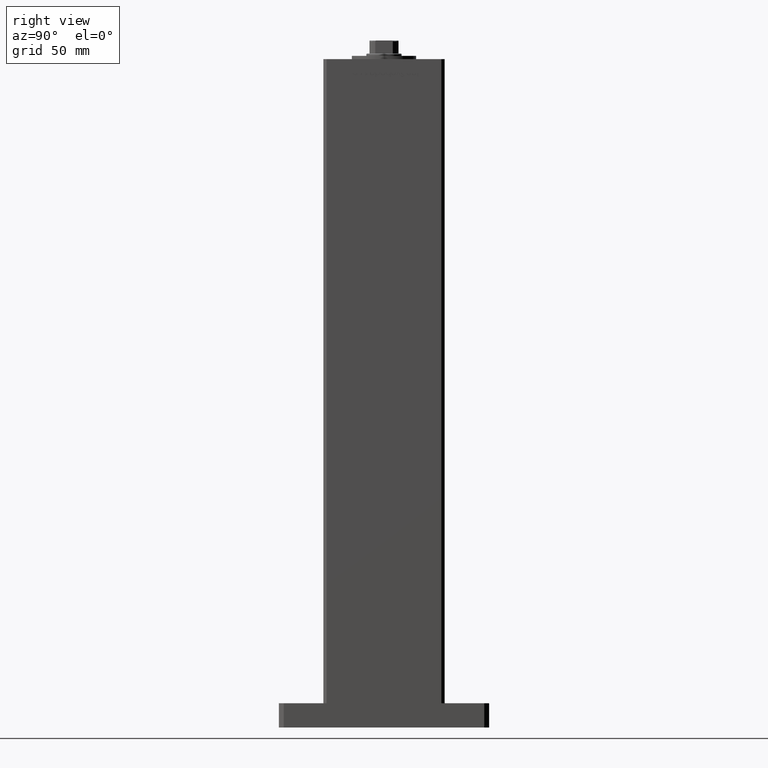
[diagram: clean part render]
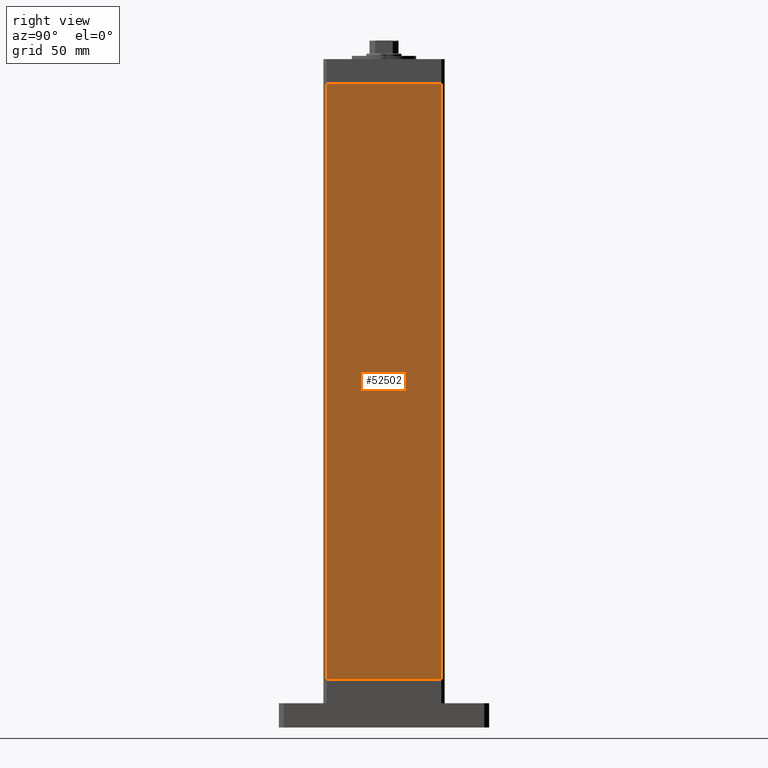
[diagram: same view with one face highlighted and labeled with its STEP entity id]
A machine part, right view. The second image highlights one B-rep face of the part: STEP entity #52502.
In plain terms, the highlighted planar face has unit normal (1, -0, 0).
Its self-contained STEP definition (entity closure, byte-faithful):
#4621 = DIRECTION ( 'NONE',  ( 2.931927001650941360E-16, 1.000000000000000000, 0.000000000000000000 ) ) ;
#4925 = DIRECTION ( 'NONE',  ( -0.000000000000000000, -0.000000000000000000, -1.000000000000000000 ) ) ;
#5816 = CARTESIAN_POINT ( 'NONE',  ( 42.49999999999998579, -35.50000000000000711, 368.5000000000000000 ) ) ;
#7817 = CARTESIAN_POINT ( 'NONE',  ( 42.49999999999998579, -35.50000000000000711, 0.000000000000000000 ) ) ;
#7929 = LINE ( 'NONE', #24489, #31085 ) ;
#8182 = EDGE_CURVE ( 'NONE', #12233, #43510, #7929, .T. ) ;
#10260 = CARTESIAN_POINT ( 'NONE',  ( 42.50000000000000711, 35.50000000000001421, 0.000000000000000000 ) ) ;
#12233 = VERTEX_POINT ( 'NONE', #32665 ) ;
#12360 = AXIS2_PLACEMENT_3D ( 'NONE', #49743, #38302, #4621 ) ;
#13075 = LINE ( 'NONE', #25570, #15099 ) ;
#13395 = VERTEX_POINT ( 'NONE', #5816 ) ;
#14649 = EDGE_LOOP ( 'NONE', ( #41457, #50613, #29217, #26696 ) ) ;
#15099 = VECTOR ( 'NONE', #4925, 1000.000000000000000 ) ;
#16325 = DIRECTION ( 'NONE',  ( -0.000000000000000000, -0.000000000000000000, -1.000000000000000000 ) ) ;
#23706 = VERTEX_POINT ( 'NONE', #7817 ) ;
#24489 = CARTESIAN_POINT ( 'NONE',  ( 42.50000000000000711, 35.50000000000001421, 368.5000000000000000 ) ) ;
#24720 = FACE_OUTER_BOUND ( 'NONE', #14649, .T. ) ;
#25570 = CARTESIAN_POINT ( 'NONE',  ( 42.49999999999998579, -35.50000000000000711, 368.5000000000000000 ) ) ;
#26696 = ORIENTED_EDGE ( 'NONE', *, *, #28895, .T. ) ;
#28895 = EDGE_CURVE ( 'NONE', #13395, #23706, #13075, .T. ) ;
#29134 = CARTESIAN_POINT ( 'NONE',  ( 42.50000000000000711, 35.50000000000001421, 368.5000000000000000 ) ) ;
#29217 = ORIENTED_EDGE ( 'NONE', *, *, #41491, .T. ) ;
#31085 = VECTOR ( 'NONE', #16325, 1000.000000000000000 ) ;
#32665 = CARTESIAN_POINT ( 'NONE',  ( 42.50000000000000711, 35.50000000000001421, 368.5000000000000000 ) ) ;
#32873 = CARTESIAN_POINT ( 'NONE',  ( 42.50000000000000711, 35.50000000000001421, 0.000000000000000000 ) ) ;
#37304 = LINE ( 'NONE', #29134, #50357 ) ;
#38302 = DIRECTION ( 'NONE',  ( 1.000000000000000000, -2.931927001650941360E-16, 0.000000000000000000 ) ) ;
#38499 = DIRECTION ( 'NONE',  ( -2.931927001650941360E-16, -1.000000000000000000, 0.000000000000000000 ) ) ;
#39880 = VECTOR ( 'NONE', #38499, 1000.000000000000000 ) ;
#40140 = EDGE_CURVE ( 'NONE', #43510, #23706, #45645, .T. ) ;
#41326 = PLANE ( 'NONE',  #12360 ) ;
#41457 = ORIENTED_EDGE ( 'NONE', *, *, #40140, .F. ) ;
#41491 = EDGE_CURVE ( 'NONE', #12233, #13395, #37304, .T. ) ;
#43510 = VERTEX_POINT ( 'NONE', #10260 ) ;
#45645 = LINE ( 'NONE', #32873, #39880 ) ;
#49743 = CARTESIAN_POINT ( 'NONE',  ( 42.50000000000000711, 35.50000000000001421, 368.5000000000000000 ) ) ;
#50082 = DIRECTION ( 'NONE',  ( -2.931927001650941360E-16, -1.000000000000000000, 0.000000000000000000 ) ) ;
#50357 = VECTOR ( 'NONE', #50082, 1000.000000000000000 ) ;
#50613 = ORIENTED_EDGE ( 'NONE', *, *, #8182, .F. ) ;
#52502 = ADVANCED_FACE ( 'NONE', ( #24720 ), #41326, .T. ) ;